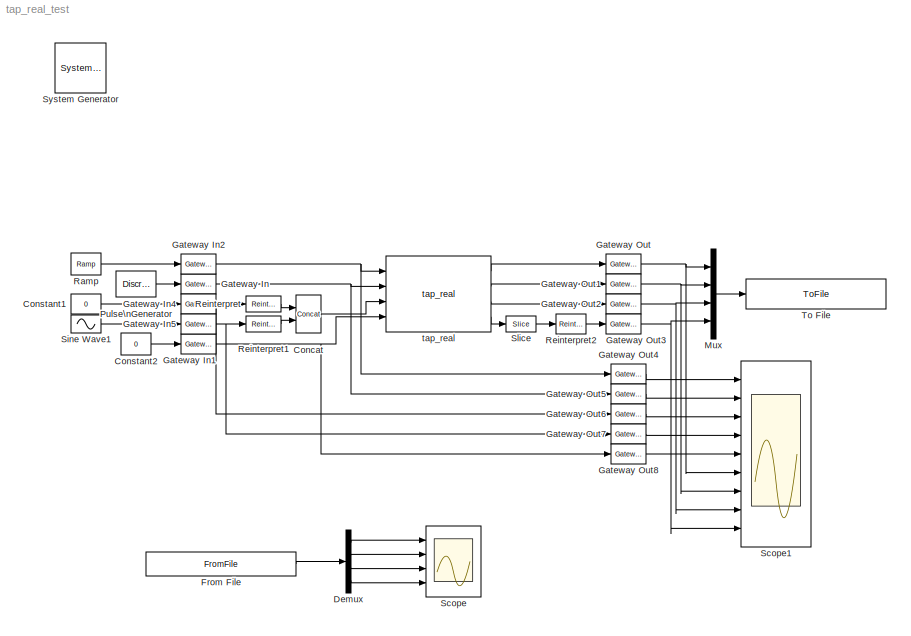
MODEL tap_real_test
KIND model
BLOCK [Reference]  System Generator  REF=xbsIndex_r4/ System Generator
  AttributesFormatString = System\\nGenerator
  FunctionWithSeparateData = off
  Ports = []
  RTWMemSecDataConstants = Inherit from model
  RTWMemSecDataInternal = Inherit from model
  RTWMemSecDataParameters = Inherit from model
  RTWMemSecFuncExecute = Inherit from model
  RTWMemSecFuncInitTerm = Inherit from model
  ShowPortLabels = FromPortIcon
  SourceBlock = xbsIndex_r4/ System Generator
  SourceType = Xilinx System Generator Block
  SystemSampleTime = -1
  Tag = genX
  UserData = DataTag0
  UserDataPersistent = on
  block_type = sysgen
  block_version = 10.1.1
  clock_wrapper = Clock Enables
  core_generation = According to Block Masks
  dbl_ovrd = According to Block Masks
  dcm_input_clock_period = 100
  deprecated_control = off
  directory = ./netlist
  eval_field = 0
  has_advanced_control = 0
  incr_netlist = off
  infoedit = System Generator
  package = ff668
  part = xc4vsx35
  run_coregen = off
  sg_icon_stat = 51,50,-1,-1,red,beige,0,07734,right
  sg_mask_display = fprintf('','COMMENT: begin icon graphics');\npatch([0 51 51 0 ],[0 0 50 50 ],[0.93 0.92 0.86]);\npatch([12 4 16 4 12 25 29 33 47 36 25 17 29 17 25 36 47 33 29 25 12 ],[5 13 25 37 45 45 41 45 45 34 45 37 25 13 5 16 5 5 9 5 5 ],[0.6 0.2 0.25]);\nplot([0 51 51 0 0 ],[0 0 50 50 0 ]);\nfprintf('','COMMENT: end icon graphics');\nfprintf('','COMMENT: begin icon text');\nfprintf('','COMMENT: end icon text...<+5ch>
  sggui_pos = -1,-1,-1,-1
  simulink_period = 1
  speed = -10
  synthesis_tool = XST
  sysclk_period = 100
  testbench = off
  trim_vbits = Everywhere in SubSystem
  xilinxfamily = Virtex4
BLOCK [Reference] Concat  REF=xbsIndex_r4/Concat
  Ports = [2, 1]
  SourceBlock = xbsIndex_r4/Concat
  SourceType = Xilinx Bus Concatenator Block
  block_type = concat
  block_version = 10.1.1
  dbl_ovrd = off
  has_advanced_control = 0
  infoedit = Concatenates two or more inputs.  Output will be cast to an unsigned value with the binary point at zero.
  num_inputs = 2
  sg_icon_stat = 25,38,1,1,white,blue,0,df1e5aba,right
  sg_mask_display = fprintf('','COMMENT: begin icon graphics');\npatch([0 60 60 0 ],[0 0 60 60 ],[0.77 0.82 0.91]);\npatch([14 4 18 4 14 30 34 38 55 42 29 20 35 20 29 42 55 38 34 30 14 ],[6 16 30 44 54 54 50 54 54 41 54 45 30 15 6 19 6 6 10 6 6 ],[0.98 0.96 0.92]);\nplot([0 60 60 0 0 ],[0 0 60 60 0 ]);\nfprintf('','COMMENT: end icon graphics');\nfprintf('','COMMENT: begin icon text');\ncolor('black');port_label('inpu...<+96ch>
  sggui_pos = -1,-1,-1,-1
BLOCK [Constant] Constant1
  OutDataType = sfix(16)
  OutScaling = 2^0
  Value = 0
BLOCK [Constant] Constant2
  OutDataType = sfix(16)
  OutScaling = 2^0
  Value = 0
BLOCK [Demux] Demux
  DisplayOption = bar
  Ports = [1, 4]
BLOCK [FromFile] From File
  FileName = tap_real_test_reference.mat
  SampleTime = 1
BLOCK [Reference] Gateway In  REF=xbsIndex_r4/Gateway In
  LOCs = {}
  Ports = [1, 1]
  SourceBlock = xbsIndex_r4/Gateway In
  SourceType = Xilinx Gateway In Block
  arith_type = Boolean
  bin_pt = 14
  block_type = gatewayin
  block_version = 10.1.1
  dbl_ovrd = off
  has_advanced_control = 0
  infoedit = Gateway in block.  Converts inputs of type Simulink integer, double and fixed point to  Xilinx fixed point type.<P><P>Hardware notes:  In hardware these blocks become top level input ports.  <repeated x5 — deduplicated; at blocks: Gateway In, Gateway In1, Gateway In2, Gateway In4, Gateway In5>
  locs_specified = off
  n_bits = 16
  overflow = Saturate
  period = 1
  quantization = Round  (unbiased: +/- Inf)
  sg_icon_stat = 35,20,1,1,white,yellow,0,bc55d28f,right
  sg_mask_display = fprintf('','COMMENT: begin icon graphics');\npatch([0 65 65 0 ],[0 0 20 20 ],[0.95 0.93 0.65]);\npatch([27 24 29 24 27 32 33 34 40 36 32 29 34 29 32 36 40 34 33 32 27 ],[2 5 10 15 18 18 17 18 18 14 18 15 10 5 2 6 2 2 3 2 2 ],[0.98 0.96 0.92]);\nplot([0 65 65 0 0 ],[0 0 20 20 0 ]);\nfprintf('','COMMENT: end icon graphics');\nfprintf('','COMMENT: begin icon text');\ncolor('black');port_label('input'...<+131ch>  <repeated x5 — deduplicated; at blocks: Gateway In, Gateway In1, Gateway In2, Gateway In4, Gateway In5>
  sggui_pos = 2118,179,407,458
  timing_constraint = None
  xl_area = [0,0,0,0,0,0,0]
  xl_use_area = off
BLOCK [Reference] Gateway In1  REF=xbsIndex_r4/Gateway In
  LOCs = {}
  Ports = [1, 1]
  SourceBlock = xbsIndex_r4/Gateway In
  SourceType = Xilinx Gateway In Block
  arith_type = Unsigned
  bin_pt = 0
  block_type = gatewayin
  block_version = 10.1.1
  dbl_ovrd = off
  has_advanced_control = 0
  locs_specified = off
  n_bits = 16
  overflow = Wrap
  period = 1
  quantization = Truncate
  sg_icon_stat = 35,20,1,1,white,yellow,0,bc55d28f,right
  sggui_pos = 2158,161,407,458
  timing_constraint = None
  xl_area = [0,0,0,0,0,0,0]
  xl_use_area = off
BLOCK [Reference] Gateway In2  REF=xbsIndex_r4/Gateway In
  LOCs = {}
  Ports = [1, 1]
  SourceBlock = xbsIndex_r4/Gateway In
  SourceType = Xilinx Gateway In Block
  arith_type = Signed  (2's comp)
  bin_pt = 7
  block_type = gatewayin
  block_version = 10.1.1
  dbl_ovrd = off
  has_advanced_control = 0
  locs_specified = off
  n_bits = 8
  overflow = Wrap
  period = 1
  quantization = Truncate
  sg_icon_stat = 35,20,1,1,white,yellow,0,bc55d28f,right
  sggui_pos = 2061,135,407,458
  timing_constraint = None
  xl_area = [0,0,0,0,0,0,0]
  xl_use_area = off
BLOCK [Reference] Gateway In4  REF=xbsIndex_r4/Gateway In
  LOCs = {}
  Ports = [1, 1]
  SourceBlock = xbsIndex_r4/Gateway In
  SourceType = Xilinx Gateway In Block
  arith_type = Signed  (2's comp)
  bin_pt = 5
  block_type = gatewayin
  block_version = 10.1.1
  dbl_ovrd = off
  has_advanced_control = 0
  locs_specified = off
  n_bits = 16
  overflow = Wrap
  period = 1
  quantization = Truncate
  sg_icon_stat = 35,20,1,1,white,yellow,0,bc55d28f,right
  sggui_pos = 2220,215,407,458
  timing_constraint = None
  xl_area = [0,0,0,0,0,0,0]
  xl_use_area = off
BLOCK [Reference] Gateway In5  REF=xbsIndex_r4/Gateway In
  LOCs = {}
  Ports = [1, 1]
  SourceBlock = xbsIndex_r4/Gateway In
  SourceType = Xilinx Gateway In Block
  arith_type = Signed  (2's comp)
  bin_pt = 16
  block_type = gatewayin
  block_version = 10.1.1
  dbl_ovrd = off
  has_advanced_control = 0
  locs_specified = off
  n_bits = 18
  overflow = Wrap
  period = 1
  quantization = Truncate
  sg_icon_stat = 35,20,1,1,white,yellow,0,bc55d28f,right
  sggui_pos = 2060,231,407,458
  timing_constraint = None
  xl_area = [0,0,0,0,0,0,0]
  xl_use_area = off
BLOCK [Reference] Gateway Out  REF=xbsIndex_r4/Gateway Out
  LOCs = {}
  Ports = [1, 1]
  SourceBlock = xbsIndex_r4/Gateway Out
  SourceType = Xilinx Gateway Out Block
  block_type = gatewayout
  block_version = 10.1.1
  has_advanced_control = 0
  hdl_port = on
  infoedit = Gateway out block.  Converts Xilinx fixed point inputs into ouputs of type Simulink integer, double, or fixed point.<P><P>Hardware notes:  In hardware these blocks become top level output ports or are discarded, depending on how they are configured.  <repeated x9 — deduplicated; at blocks: Gateway Out, Gateway Out1, Gateway Out2, Gateway Out3, Gateway Out4, Gateway Out5, Gateway Out6, Gateway Out7, Gateway Out8>
  locs_specified = off
  sg_icon_stat = 35,20,1,1,white,yellow,0,38220381,right
  sg_mask_display = fprintf('','COMMENT: begin icon graphics');\npatch([0 35 35 0 ],[0 0 20 20 ],[0.95 0.93 0.65]);\npatch([12 9 14 9 12 17 18 19 25 21 17 14 19 14 17 21 25 19 18 17 12 ],[2 5 10 15 18 18 17 18 18 14 18 15 10 5 2 6 2 2 3 2 2 ],[0.98 0.96 0.92]);\nplot([0 35 35 0 0 ],[0 0 20 20 0 ]);\nfprintf('','COMMENT: end icon graphics');\nfprintf('','COMMENT: begin icon text');\ncolor('black');port_label('input',1...<+130ch>  <repeated x9 — deduplicated; at blocks: Gateway Out, Gateway Out1, Gateway Out2, Gateway Out3, Gateway Out4, Gateway Out5, Gateway Out6, Gateway Out7, Gateway Out8>
  sggui_pos = -1,-1,-1,-1
  timing_constraint = None
  xl_area = [0,0,0,0,0,0,0]
  xl_use_area = off
BLOCK [Reference] Gateway Out1  REF=xbsIndex_r4/Gateway Out
  LOCs = {}
  Ports = [1, 1]
  SourceBlock = xbsIndex_r4/Gateway Out
  SourceType = Xilinx Gateway Out Block
  block_type = gatewayout
  block_version = 10.1.1
  has_advanced_control = 0
  hdl_port = on
  locs_specified = off
  sg_icon_stat = 35,20,1,1,white,yellow,0,38220381,right
  sggui_pos = -1,-1,-1,-1
  timing_constraint = None
  xl_area = [0,0,0,0,0,0,0]
  xl_use_area = off
BLOCK [Reference] Gateway Out2  REF=xbsIndex_r4/Gateway Out
  LOCs = {}
  Ports = [1, 1]
  SourceBlock = xbsIndex_r4/Gateway Out
  SourceType = Xilinx Gateway Out Block
  block_type = gatewayout
  block_version = 10.1.1
  has_advanced_control = 0
  hdl_port = on
  locs_specified = off
  sg_icon_stat = 35,20,1,1,white,yellow,0,38220381,right
  sggui_pos = -1,-1,-1,-1
  timing_constraint = None
  xl_area = [0,0,0,0,0,0,0]
  xl_use_area = off
BLOCK [Reference] Gateway Out3  REF=xbsIndex_r4/Gateway Out
  LOCs = {}
  Ports = [1, 1]
  SourceBlock = xbsIndex_r4/Gateway Out
  SourceType = Xilinx Gateway Out Block
  block_type = gatewayout
  block_version = 10.1.1
  has_advanced_control = 0
  hdl_port = on
  locs_specified = off
  sg_icon_stat = 35,20,1,1,white,yellow,0,38220381,right
  sggui_pos = -1,-1,-1,-1
  timing_constraint = None
  xl_area = [0,0,0,0,0,0,0]
  xl_use_area = off
BLOCK [Reference] Gateway Out4  REF=xbsIndex_r4/Gateway Out
  LOCs = {}
  Ports = [1, 1]
  SourceBlock = xbsIndex_r4/Gateway Out
  SourceType = Xilinx Gateway Out Block
  block_type = gatewayout
  block_version = 10.1.1
  has_advanced_control = 0
  hdl_port = on
  locs_specified = off
  sg_icon_stat = 35,20,1,1,white,yellow,0,38220381,right
  sggui_pos = -1,-1,-1,-1
  timing_constraint = None
  xl_area = [0,0,0,0,0,0,0]
  xl_use_area = off
BLOCK [Reference] Gateway Out5  REF=xbsIndex_r4/Gateway Out
  LOCs = {}
  Ports = [1, 1]
  SourceBlock = xbsIndex_r4/Gateway Out
  SourceType = Xilinx Gateway Out Block
  block_type = gatewayout
  block_version = 10.1.1
  has_advanced_control = 0
  hdl_port = on
  locs_specified = off
  sg_icon_stat = 35,20,1,1,white,yellow,0,38220381,right
  sggui_pos = -1,-1,-1,-1
  timing_constraint = None
  xl_area = [0,0,0,0,0,0,0]
  xl_use_area = off
BLOCK [Reference] Gateway Out6  REF=xbsIndex_r4/Gateway Out
  LOCs = {}
  Ports = [1, 1]
  SourceBlock = xbsIndex_r4/Gateway Out
  SourceType = Xilinx Gateway Out Block
  block_type = gatewayout
  block_version = 10.1.1
  has_advanced_control = 0
  hdl_port = on
  locs_specified = off
  sg_icon_stat = 35,20,1,1,white,yellow,0,38220381,right
  sggui_pos = -1,-1,-1,-1
  timing_constraint = None
  xl_area = [0,0,0,0,0,0,0]
  xl_use_area = off
BLOCK [Reference] Gateway Out7  REF=xbsIndex_r4/Gateway Out
  LOCs = {}
  Ports = [1, 1]
  SourceBlock = xbsIndex_r4/Gateway Out
  SourceType = Xilinx Gateway Out Block
  block_type = gatewayout
  block_version = 10.1.1
  has_advanced_control = 0
  hdl_port = on
  locs_specified = off
  sg_icon_stat = 35,20,1,1,white,yellow,0,38220381,right
  sggui_pos = -1,-1,-1,-1
  timing_constraint = None
  xl_area = [0,0,0,0,0,0,0]
  xl_use_area = off
BLOCK [Reference] Gateway Out8  REF=xbsIndex_r4/Gateway Out
  LOCs = {}
  Ports = [1, 1]
  SourceBlock = xbsIndex_r4/Gateway Out
  SourceType = Xilinx Gateway Out Block
  block_type = gatewayout
  block_version = 10.1.1
  has_advanced_control = 0
  hdl_port = on
  locs_specified = off
  sg_icon_stat = 35,20,1,1,white,yellow,0,38220381,right
  sggui_pos = -1,-1,-1,-1
  timing_constraint = None
  xl_area = [0,0,0,0,0,0,0]
  xl_use_area = off
BLOCK [Mux] Mux
  DisplayOption = bar
  Ports = [4, 1]
BLOCK [DiscretePulseGenerator] Pulse\nGenerator
  Period = 16
  PhaseDelay = 7
  Ports = [0, 1]
BLOCK [Reference] Ramp  REF=simulink/Sources/Ramp
  FunctionWithSeparateData = off
  Ports = [0, 1]
  RTWMemSecDataConstants = Inherit from model
  RTWMemSecDataInternal = Inherit from model
  RTWMemSecDataParameters = Inherit from model
  RTWMemSecFuncExecute = Inherit from model
  RTWMemSecFuncInitTerm = Inherit from model
  ShowPortLabels = FromPortIcon
  SourceBlock = simulink/Sources/Ramp
  SourceType = Ramp
  SystemSampleTime = -1
  VectorParams1D = on
  X0 = 0
  slope = 1/64
  start = 0
BLOCK [Reference] Reinterpret  REF=xbsIndex_r4/Reinterpret
  Ports = [1, 1]
  SourceBlock = xbsIndex_r4/Reinterpret
  SourceType = Xilinx Type Reinterpreter Block
  arith_type = Unsigned
  bin_pt = 0
  block_type = reinterpret
  block_version = 10.1.1
  force_arith_type = on
  force_bin_pt = on
  has_advanced_control = 0
  infoedit = Changes signal type without altering the binary representation.   You can changed the signal between signed and unsigned, and relocate the binary point.<P><P>Hardware notes: In hardware this block costs nothing.<P><P>Example:  Suppose the input is 6 bits wide, signed, with 2 fractional bits, and the output is forced to unsigned with 0 fractional bits.  Then an input of -2.0 (1110.00 in binary 2's ...<+55ch>  <repeated x3 — deduplicated; at blocks: Reinterpret, Reinterpret1, Reinterpret2>
  sg_icon_stat = 35,16,1,1,white,blue,0,8982c1db,right
  sg_mask_display = fprintf('','COMMENT: begin icon graphics');\npatch([0 50 50 0 ],[0 0 32 32 ],[0.77 0.82 0.91]);\npatch([16 11 18 11 16 24 26 28 37 30 23 18 25 18 23 30 37 28 26 24 16 ],[3 8 15 22 27 27 25 27 27 20 27 22 15 8 3 10 3 3 5 3 3 ],[0.98 0.96 0.92]);\nplot([0 50 50 0 0 ],[0 0 32 32 0 ]);\nfprintf('','COMMENT: end icon graphics');\nfprintf('','COMMENT: begin icon text');\ncolor('black');disp('reinterpret...<+44ch>  <repeated x3 — deduplicated; at blocks: Reinterpret, Reinterpret1, Reinterpret2>
  sggui_pos = 2218,172,336,370
BLOCK [Reference] Reinterpret1  REF=xbsIndex_r4/Reinterpret
  Ports = [1, 1]
  SourceBlock = xbsIndex_r4/Reinterpret
  SourceType = Xilinx Type Reinterpreter Block
  arith_type = Unsigned
  bin_pt = 0
  block_type = reinterpret
  block_version = 10.1.1
  force_arith_type = on
  force_bin_pt = on
  has_advanced_control = 0
  sg_icon_stat = 35,16,1,1,white,blue,0,8982c1db,right
  sggui_pos = 2169,219,336,370
BLOCK [Reference] Reinterpret2  REF=xbsIndex_r4/Reinterpret
  Ports = [1, 1]
  SourceBlock = xbsIndex_r4/Reinterpret
  SourceType = Xilinx Type Reinterpreter Block
  arith_type = Signed  (2's comp)
  bin_pt = 23
  block_type = reinterpret
  block_version = 10.1.1
  force_arith_type = on
  force_bin_pt = on
  has_advanced_control = 0
  sg_icon_stat = 30,20,1,1,white,blue,0,8982c1db,right
  sggui_pos = 20,20,336,370
BLOCK [Scope] Scope
  DataFormat = StructureWithTime
  Floating = off
  NumInputPorts = 4
  Ports = [4]
  SampleTime = 0
  YMax = 5~5~5~5
  YMin = -5~-5~-5~-5
BLOCK [Scope] Scope1
  DataFormat = StructureWithTime
  Floating = off
  NumInputPorts = 9
  Ports = [9]
  SampleTime = 0
  SaveName = ScopeData1
  YMax = 1~2~1~5~5~5~5~5~5
  YMin = -1~-1~-1~-5~-5~-5~-5~-5~-5
BLOCK [Sin] Sine Wave1
  Amplitude = 2^0
  Ports = [0, 1]
  SampleTime = 1
  Samples = 64
  SineType = Sample based
BLOCK [Reference] Slice  REF=xbsIndex_r4/Slice
  Ports = [1, 1]
  SourceBlock = xbsIndex_r4/Slice
  SourceType = Xilinx Bit Slice Extractor Block
  base0 = LSB of Input
  base1 = MSB of Input
  bit0 = 0
  bit1 = 0
  block_type = slice
  block_version = 10.1.1
  boolean_output = off
  dbl_ovrd = off
  has_advanced_control = 0
  infoedit = Extracts a given range of bits from each input sample and presents it at the output.  The output type is ordinarily unsigned with binary point at zero, but can be Boolean when the slice is one bit wide.<P><P>Hardware notes: In hardware this block costs nothing.
  mode = Upper Bit Location + Width
  nbits = 26
  sg_icon_stat = 30,16,1,1,white,blue,0,b1026674,right
  sg_mask_display = fprintf('','COMMENT: begin icon graphics');\npatch([0 60 60 0 ],[0 0 30 30 ],[0.77 0.82 0.91]);\npatch([22 17 24 17 22 30 32 34 42 35 29 24 30 24 29 35 42 34 32 30 22 ],[3 8 15 22 27 27 25 27 27 20 26 21 15 9 4 10 3 3 5 3 3 ],[0.98 0.96 0.92]);\nplot([0 60 60 0 0 ],[0 0 30 30 0 ]);\nfprintf('','COMMENT: end icon graphics');\nfprintf('','COMMENT: begin icon text');\ncolor('black');port_label('outpu...<+55ch>
  sggui_pos = 2269,149,533,427
BLOCK [ToFile] To File
  Filename = tap_real_test_output.mat
  MatrixName = output
BLOCK [Reference] tap_real  REF=casper_library/PFBs/tap_real  (lib defined in mdl_138b2fc3435f, mdl_4ed325b712b3, +2 more)
  FunctionWithSeparateData = off
  Ports = [4, 4]
  RTWMemSecDataConstants = Inherit from model
  RTWMemSecDataInternal = Inherit from model
  RTWMemSecDataParameters = Inherit from model
  RTWMemSecFuncExecute = Inherit from model
  RTWMemSecFuncInitTerm = Inherit from model
  ShowPortLabels = FromPortIcon
  SourceBlock = casper_library/PFBs/tap_real
  SourceType = pfb_tap_real
  SystemSampleTime = -1
  bram_latency = 1
  coeff_frac_width = 16
  coeff_width = 18
  data_width = 8
  delay = 8
  mult_latency = 3
LINE Concat:1 -> tap_real:3
LINE Constant1:1 -> Gateway In4:1
LINE Constant2:1 -> Gateway In1:1
LINE Demux:1 -> Scope:1
LINE Demux:2 -> Scope:2
LINE Demux:3 -> Scope:3
LINE Demux:4 -> Scope:4
LINE From File:1 -> Demux:1
NET Gateway In1:1 -> Gateway Out8:1, tap_real:4
NET Gateway In2:1 -> Gateway Out4:1, tap_real:1
NET Gateway In4:1 -> Gateway Out6:1, Reinterpret:1
NET Gateway In5:1 -> Gateway Out7:1, Reinterpret1:1
NET Gateway In:1 -> Gateway Out5:1, tap_real:2
NET Gateway Out1:1 -> Mux:2, Scope1:7
NET Gateway Out2:1 -> Mux:3, Scope1:8
NET Gateway Out3:1 -> Mux:4, Scope1:9
LINE Gateway Out4:1 -> Scope1:1
LINE Gateway Out5:1 -> Scope1:2
LINE Gateway Out6:1 -> Scope1:3
LINE Gateway Out7:1 -> Scope1:4
LINE Gateway Out8:1 -> Scope1:5
NET Gateway Out:1 -> Mux:1, Scope1:6
LINE Mux:1 -> To File:1
LINE Pulse\nGenerator:1 -> Gateway In:1
LINE Ramp:1 -> Gateway In2:1
LINE Reinterpret1:1 -> Concat:2
LINE Reinterpret2:1 -> Gateway Out3:1
LINE Reinterpret:1 -> Concat:1
LINE Sine Wave1:1 -> Gateway In5:1
LINE Slice:1 -> Reinterpret2:1
LINE tap_real:1 -> Gateway Out:1
LINE tap_real:2 -> Gateway Out1:1
LINE tap_real:3 -> Gateway Out2:1
LINE tap_real:4 -> Slice:1
note: NET lines group one-source signal fan-out (src -> all destinations, sorted); 1:1 wires keep LINE
